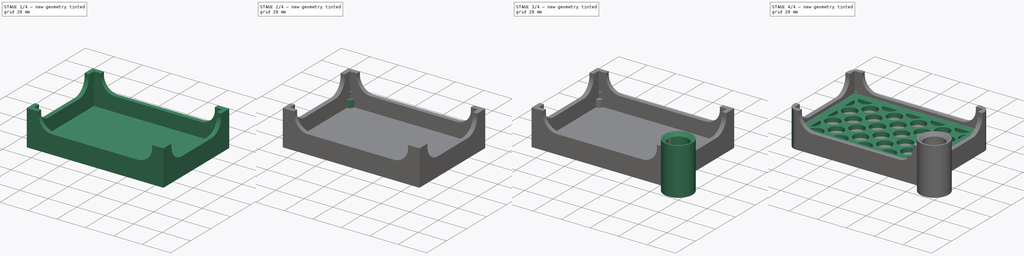
[diagram: build sequence overview — one tinted view per stage of 4, left to right]
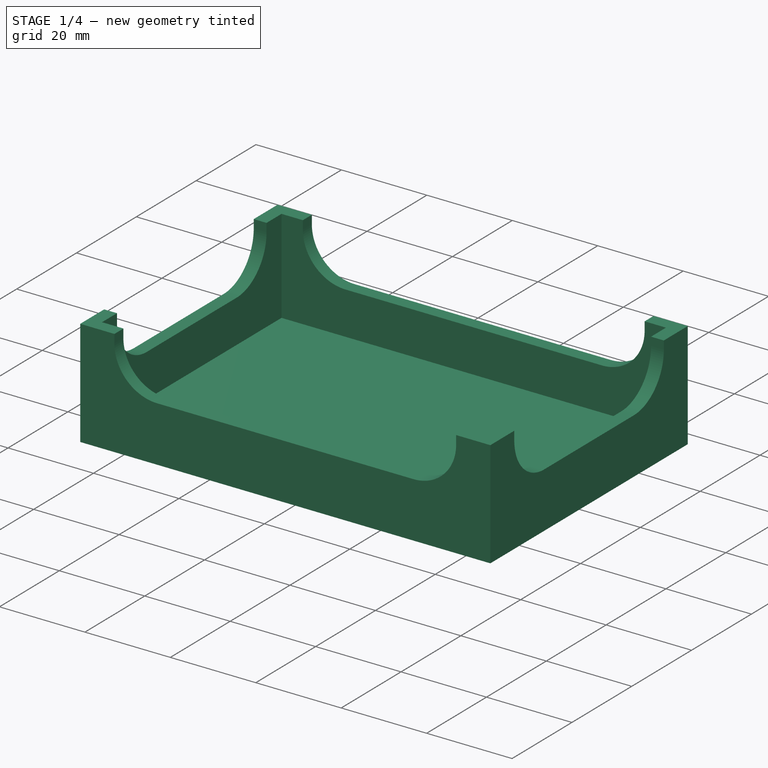
[diagram: stage 1 of 4 — iso view after this stage's code; geometry added in this stage tinted green]
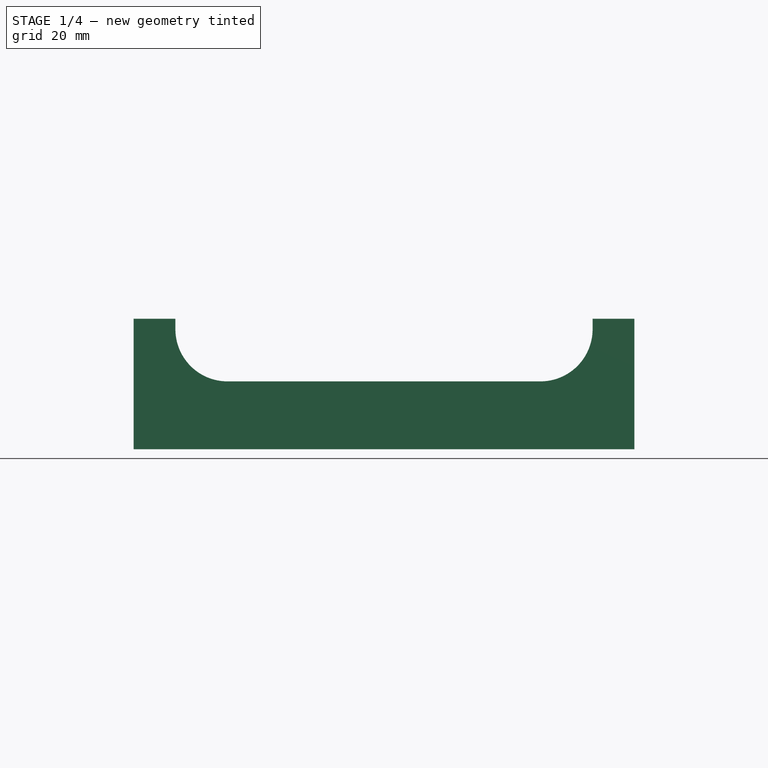
[diagram: stage 1 of 4 — front view after this stage's code; geometry added in this stage tinted green]
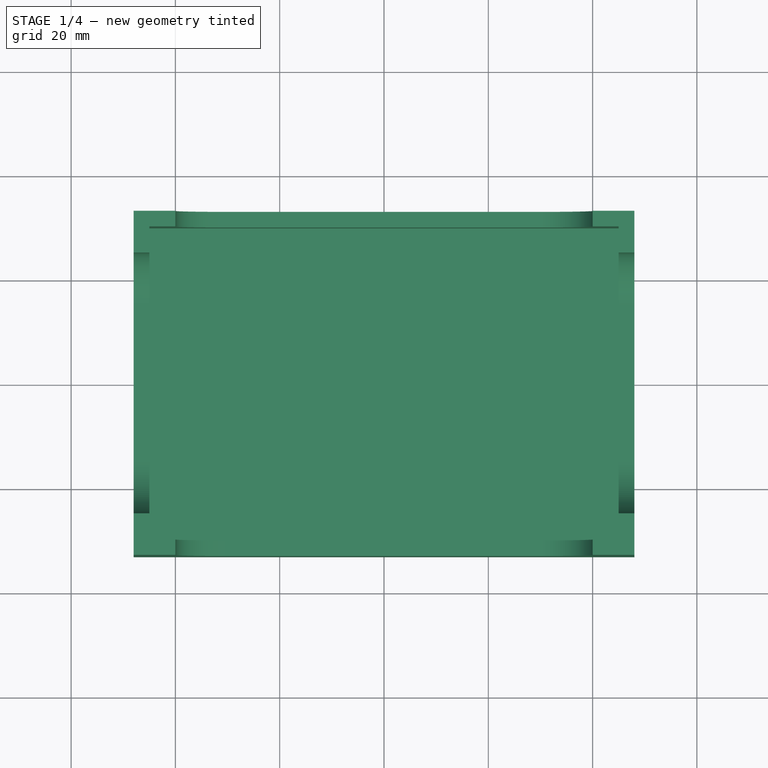
[diagram: stage 1 of 4 — top view after this stage's code; geometry added in this stage tinted green]
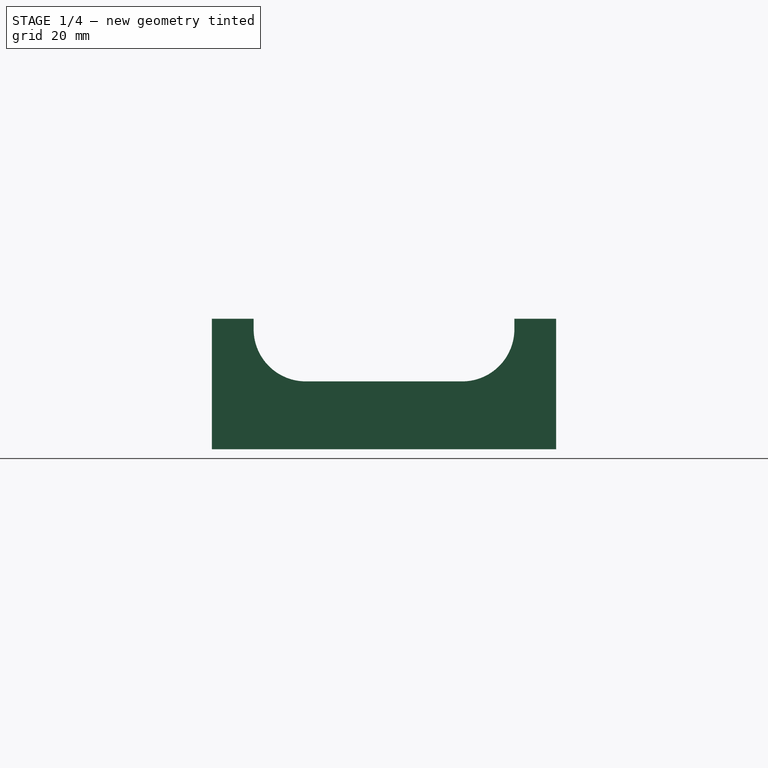
[diagram: stage 1 of 4 — right view after this stage's code; geometry added in this stage tinted green]
FCSTD DOCUMENT  (FreeCAD 0.19R23323 (Git))
Label: soap-holder
License: All rights reserved
LicenseURL: http://en.wikipedia.org/wiki/All_rights_reserved
objects: Sketcher::SketchObject×11, PartDesign::Pad×6, PartDesign::Pocket×5, PartDesign::Chamfer×2, PartDesign::Body×2, PartDesign::Fillet×1
note: 41 computed .brp shape members not serialized (recipe doc carries the construction recipe); baked Part::Feature solids carry a one-line shape summary decoded from their .brp

FEATURE [Sketcher::SketchObject] Sketch
  MapMode = 5
  Support = -> [XY_Plane]
  sketch-geometry (4):
    g0: LineSegment StartX=-48 StartY=33 StartZ=0 EndX=48 EndY=33 EndZ=0
    g1: LineSegment StartX=48 StartY=33 StartZ=0 EndX=48 EndY=-33 EndZ=0
    g2: LineSegment StartX=48 StartY=-33 StartZ=0 EndX=-48 EndY=-33 EndZ=0
    g3: LineSegment StartX=-48 StartY=-33 StartZ=0 EndX=-48 EndY=33 EndZ=0
  constraints (10):
    c: Coincident(g0,g1)
    c: Coincident(g1,g2)
    c: Coincident(g2,g3)
    c: Coincident(g3,g0)
    c: Horizontal(g2)
    c: Vertical(g1)
    c: Distance(g2) = 96
    c: Distance(g1) = 66
    c: Symmetric(g0,g0,g-2)
    c: Symmetric(g0,g2,g-1)
FEATURE [PartDesign::Pad] Pad  label="Case"
  Direction = (1,1,1)
  Length = 25
  Length2 = 100
  Profile = -> Sketch
  Type = 0
FEATURE [Sketcher::SketchObject] Sketch001
  MapMode = 5
  Placement = pos=(0,0,25) rot=(0,0,1;0rad)
  Support = -> [Pad]
  sketch-geometry (4):
    g0: LineSegment StartX=-45 StartY=30 StartZ=0 EndX=45 EndY=30 EndZ=0
    g1: LineSegment StartX=45 StartY=30 StartZ=0 EndX=45 EndY=-30 EndZ=0
    g2: LineSegment StartX=45 StartY=-30 StartZ=0 EndX=-45 EndY=-30 EndZ=0
    g3: LineSegment StartX=-45 StartY=-30 StartZ=0 EndX=-45 EndY=30 EndZ=0
  constraints (10):
    c: Coincident(g0,g1)
    c: Coincident(g1,g2)
    c: Coincident(g2,g3)
    c: Coincident(g3,g0)
    c: Horizontal(g2)
    c: Vertical(g1)
    c: Distance(g3) = 60
    c: Distance(g0) = 90
    c: Symmetric(g0,g0,g-2)
    c: Symmetric(g0,g2,g-1)
FEATURE [PartDesign::Pocket] Pocket  label="Case cutout"
  BaseFeature = -> Pad
  Length = 22
  Length2 = 100
  Profile = -> Sketch001
  Type = 0
  expr: Length = 25 - 3
FEATURE [Sketcher::SketchObject] Sketch002
  MapMode = 5
  Placement = pos=(0,-33,0) rot=(1,0,0;1.5708rad)
  Support = -> [Pocket]
  expr: Constraints[12] = 31 - 18
  sketch-geometry (6):
    g0: LineSegment StartX=-40 StartY=31 StartZ=0 EndX=40 EndY=31 EndZ=0
    g1: LineSegment StartX=40 StartY=31 StartZ=0 EndX=40 EndY=23 EndZ=0
    g2: LineSegment StartX=30 StartY=13 StartZ=0 EndX=-30 EndY=13 EndZ=0
    g3: LineSegment StartX=-40 StartY=23 StartZ=0 EndX=-40 EndY=31 EndZ=0
    g4: ArcOfCircle CenterX=-30 CenterY=23 CenterZ=0 NormalX=0 NormalY=0 NormalZ=1 AngleXU=0 Radius=10 StartAngle=3.14159 EndAngle=4.71239
    g5: ArcOfCircle CenterX=30 CenterY=23 CenterZ=0 NormalX=0 NormalY=0 NormalZ=1 AngleXU=0 Radius=10 StartAngle=4.71239 EndAngle=6.28319
  constraints (15):
    c: Coincident(g0,g1)
    c: Coincident(g3,g0)
    c: Horizontal(g2)
    c: Vertical(g1)
    c: Vertical(g3)
    c: Symmetric(g0,g0,g-2)
    c: DistanceY(g-1,g0) = 31
    c: Tangent(g3,g4) = 1.5708
    c: Tangent(g2,g4) = 1.5708
    c: Tangent(g1,g5) = 1.5708
    c: Tangent(g2,g5) = 1.5708
    c: Equal(g4,g5)
    c: DistanceY(g-1,g2) = 13
    c: Distance(g0) = 80
    c: Distance(g3,g4) = 10
FEATURE [PartDesign::Pocket] Pocket001  label="Case side cutout"
  BaseFeature = -> Pocket
  Length = 66
  Length2 = 100
  Profile = -> Sketch002
  Type = 0
FEATURE [Sketcher::SketchObject] Sketch003
  MapMode = 5
  Placement = pos=(-48,0,0) rot=(0.57735,-0.57735,-0.57735;2.0944rad)
  Support = -> [Pocket001]
  expr: Constraints[13] = 31 - 18
  sketch-geometry (6):
    g0: LineSegment StartX=-25 StartY=31 StartZ=0 EndX=25 EndY=31 EndZ=0
    g1: LineSegment StartX=25 StartY=31 StartZ=0 EndX=25 EndY=23 EndZ=0
    g2: LineSegment StartX=15 StartY=13 StartZ=0 EndX=-15 EndY=13 EndZ=0
    g3: LineSegment StartX=-25 StartY=23 StartZ=0 EndX=-25 EndY=31 EndZ=0
    g4: ArcOfCircle CenterX=-15 CenterY=23 CenterZ=0 NormalX=0 NormalY=0 NormalZ=1 AngleXU=0 Radius=10 StartAngle=3.14159 EndAngle=4.71239
    g5: ArcOfCircle CenterX=15 CenterY=23 CenterZ=0 NormalX=0 NormalY=0 NormalZ=1 AngleXU=0 Radius=10 StartAngle=4.71239 EndAngle=6.28319
  constraints (15):
    c: Coincident(g0,g1)
    c: Coincident(g3,g0)
    c: Horizontal(g2)
    c: Vertical(g1)
    c: Vertical(g3)
    c: Symmetric(g0,g0,g-2)
    c: Tangent(g3,g4) = 1.5708
    c: Tangent(g2,g4) = 1.5708
    c: Tangent(g1,g5) = 1.5708
    c: Tangent(g2,g5) = 1.5708
    c: Equal(g5,g4)
    c: DistanceX(g3,g4) = 10
    c: DistanceY(g-1,g0) = 31
    c: DistanceY(g-1,g2) = 13
    c: Distance(g0) = 50
FEATURE [PartDesign::Pocket] Pocket002  label="Case side cutout 2"
  BaseFeature = -> Pocket001
  Length = 96
  Length2 = 100
  Profile = -> Sketch003
  Type = 0
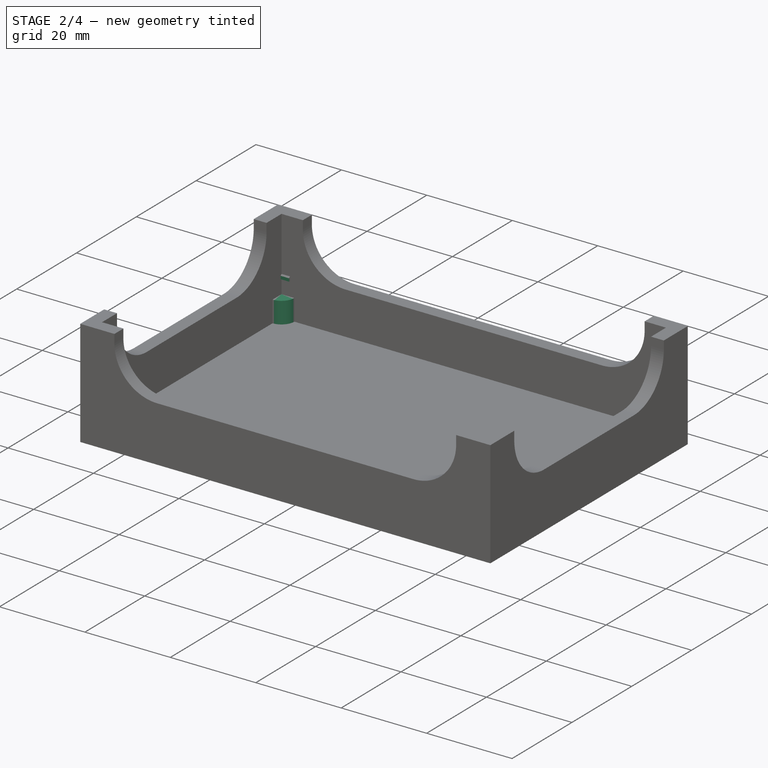
[diagram: stage 2 of 4 — iso view after this stage's code; geometry added in this stage tinted green]
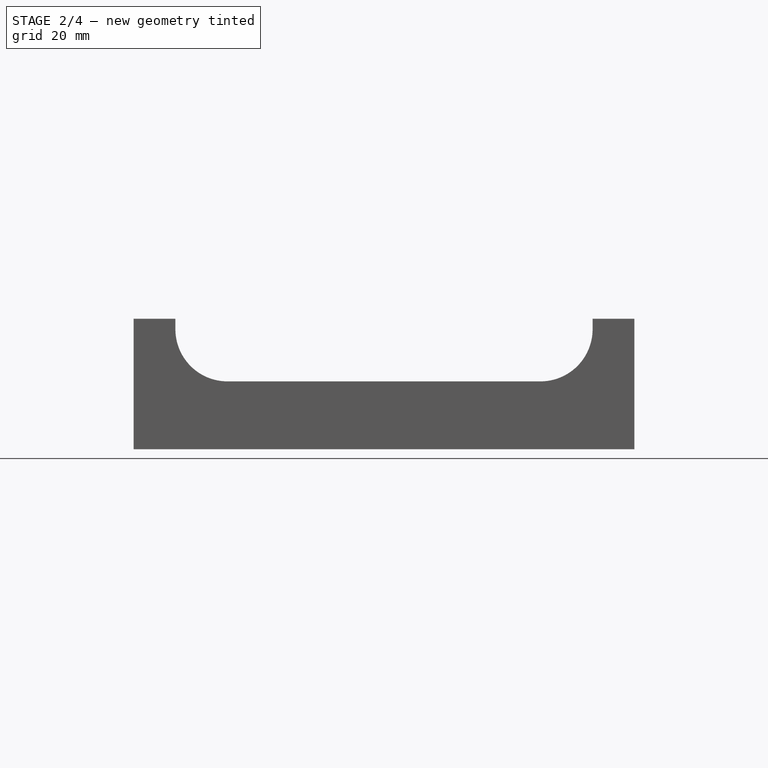
[diagram: stage 2 of 4 — front view after this stage's code; geometry added in this stage tinted green]
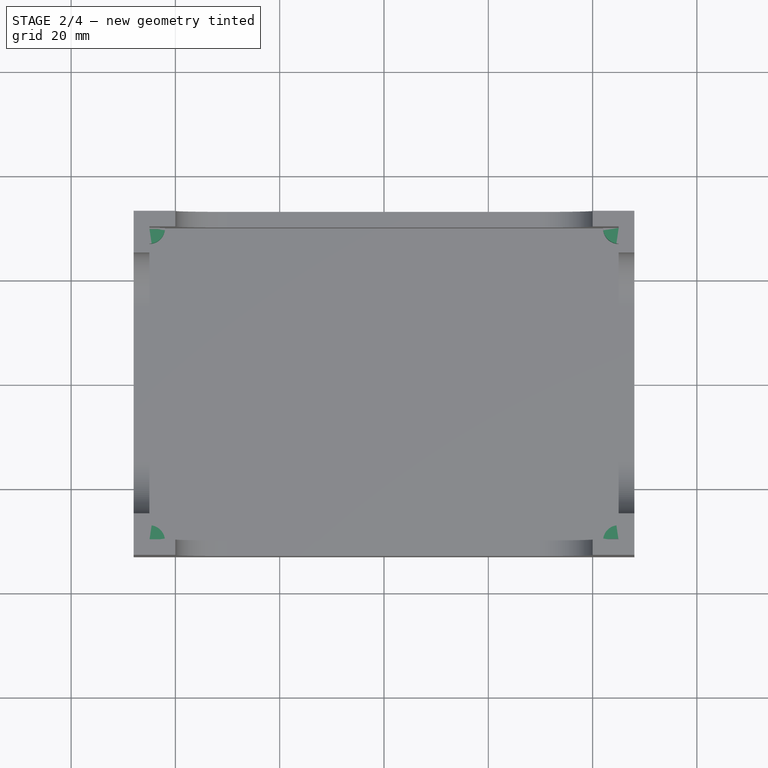
[diagram: stage 2 of 4 — top view after this stage's code; geometry added in this stage tinted green]
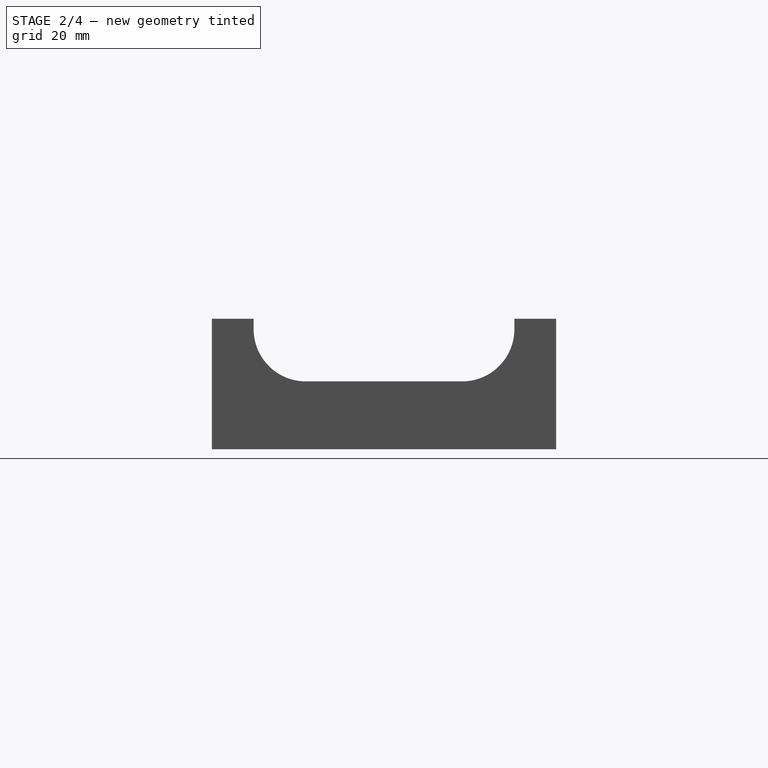
[diagram: stage 2 of 4 — right view after this stage's code; geometry added in this stage tinted green]
FEATURE [Sketcher::SketchObject] Sketch004
  MapMode = 5
  Placement = pos=(0,0,3) rot=(0,0,1;0rad)
  Support = -> [Pocket002]
  sketch-geometry (12):
    g0: ArcOfCircle CenterX=-45 CenterY=30 CenterZ=0 NormalX=0 NormalY=0 NormalZ=1 AngleXU=0 Radius=3 StartAngle=4.71239 EndAngle=6.28319
    g1: ArcOfCircle CenterX=45 CenterY=30 CenterZ=0 NormalX=0 NormalY=0 NormalZ=1 AngleXU=0 Radius=3 StartAngle=3.14159 EndAngle=4.71239
    g2: ArcOfCircle CenterX=45 CenterY=-30 CenterZ=0 NormalX=0 NormalY=0 NormalZ=1 AngleXU=0 Radius=3 StartAngle=1.5708 EndAngle=3.14159
    g3: ArcOfCircle CenterX=-45 CenterY=-30 CenterZ=0 NormalX=0 NormalY=0 NormalZ=1 AngleXU=0 Radius=3 StartAngle=0 EndAngle=1.5708
    g4: LineSegment StartX=-45 StartY=27 StartZ=0 EndX=-45 EndY=30 EndZ=0
    g5: LineSegment StartX=-45 StartY=30 StartZ=0 EndX=-42 EndY=30 EndZ=0
    g6: LineSegment StartX=42 StartY=30 StartZ=0 EndX=45 EndY=30 EndZ=0
    g7: LineSegment StartX=45 StartY=30 StartZ=0 EndX=45 EndY=27 EndZ=0
    g8: LineSegment StartX=42 StartY=-30 StartZ=0 EndX=45 EndY=-30 EndZ=0
    g9: LineSegment StartX=45 StartY=-30 StartZ=0 EndX=45 EndY=-27 EndZ=0
    g10: LineSegment StartX=-45 StartY=-27 StartZ=0 EndX=-45 EndY=-30 EndZ=0
    g11: LineSegment StartX=-45 StartY=-30 StartZ=0 EndX=-42 EndY=-30 EndZ=0
  constraints (33):
    c: Symmetric(g0,g1,g-2)
    c: Symmetric(g3,g2,g-2)
    c: Symmetric(g0,g3,g-1)
    c: Equal(g0,g1)
    c: Equal(g0,g2)
    c: Equal(g0,g3)
    c: DistanceY(g-1,g0) = 30
    c: DistanceX(g0,g-1) = 45
    c: Radius(g0) = 3
    c: DistanceX(g0,g-1) = 45
    c: DistanceX(g-1,g1) = 45
    c: DistanceX(g-1,g2) = 45
    c: DistanceX(g3,g-1) = 45
    c: DistanceY(g-1,g0) = 30
    c: DistanceY(g-1,g1) = 30
    c: DistanceY(g2,g-1) = 30
    c: DistanceY(g3,g-1) = 30
    c: Coincident(g4,g0)
    c: Coincident(g4,g0)
    c: Coincident(g5,g0)
    c: Coincident(g5,g0)
    c: Coincident(g6,g1)
    c: Coincident(g6,g1)
    c: Coincident(g7,g1)
    c: Coincident(g7,g1)
    c: Coincident(g8,g2)
    c: Coincident(g8,g2)
    c: Coincident(g9,g2)
    c: Coincident(g9,g2)
    c: Coincident(g10,g3)
    c: Coincident(g10,g3)
    c: Coincident(g11,g3)
    c: Coincident(g11,g3)
FEATURE [PartDesign::Pad] Pad001  label="Grate standoff"
  BaseFeature = -> Pocket002
  Direction = (1,1,1)
  Length = 5
  Length2 = 100
  Profile = -> Sketch004
  Type = 0
FEATURE [Sketcher::SketchObject] Sketch005
  AttachmentOffset = pos=(0,0,3.3) rot=(0,0,1;0rad)
  MapMode = 5
  Placement = pos=(0,0,11.3) rot=(0,0,1;0rad)
  Support = -> [Pad001]
  sketch-geometry (8):
    g0: LineSegment StartX=-45 StartY=30 StartZ=0 EndX=-43 EndY=30 EndZ=0
    g1: LineSegment StartX=-43 StartY=30 StartZ=0 EndX=-43 EndY=29.7 EndZ=0
    g2: LineSegment StartX=-43 StartY=29.7 StartZ=0 EndX=-45 EndY=29.7 EndZ=0
    g3: LineSegment StartX=-45 StartY=29.7 StartZ=0 EndX=-45 EndY=30 EndZ=0
    g4: LineSegment StartX=43 StartY=-30 StartZ=0 EndX=45 EndY=-30 EndZ=0
    g5: LineSegment StartX=45 StartY=-30 StartZ=0 EndX=45 EndY=-29.7 EndZ=0
    g6: LineSegment StartX=45 StartY=-29.7 StartZ=0 EndX=43 EndY=-29.7 EndZ=0
    g7: LineSegment StartX=43 StartY=-29.7 StartZ=0 EndX=43 EndY=-30 EndZ=0
  constraints (24):
    c: Coincident(g0,g1)
    c: Coincident(g1,g2)
    c: Coincident(g2,g3)
    c: Coincident(g3,g0)
    c: Horizontal(g0)
    c: Horizontal(g2)
    c: Vertical(g1)
    c: Vertical(g3)
    c: Coincident(g4,g5)
    c: Coincident(g5,g6)
    c: Coincident(g6,g7)
    c: Coincident(g7,g4)
    c: Horizontal(g4)
    c: Horizontal(g6)
    c: Vertical(g5)
    c: Vertical(g7)
    c: Distance(g2) = 2
    c: Distance(g1) = 0.3
    c: Equal(g1,g7)
    c: Equal(g2,g6)
    c: DistanceX(g-1,g4) = 45
    c: DistanceY(g4,g-1) = 30
    c: DistanceX(g0,g-1) = 45
    c: DistanceY(g-1,g0) = 30
FEATURE [PartDesign::Pad] Pad002  label="Grate snap"
  BaseFeature = -> Pad001
  Direction = (1,1,1)
  Length = 1
  Length2 = 100
  Profile = -> Sketch005
  Type = 0
FEATURE [PartDesign::Chamfer] Chamfer  label="Gtate snap chamfer"
  Angle = 45
  Base = -> Pad002 [Edge138,Edge137]
  BaseFeature = -> Pad002
  ChamferType = 0
  FlipDirection = false
  Size = 0.29
  Size2 = 1
  SupportTransform = false
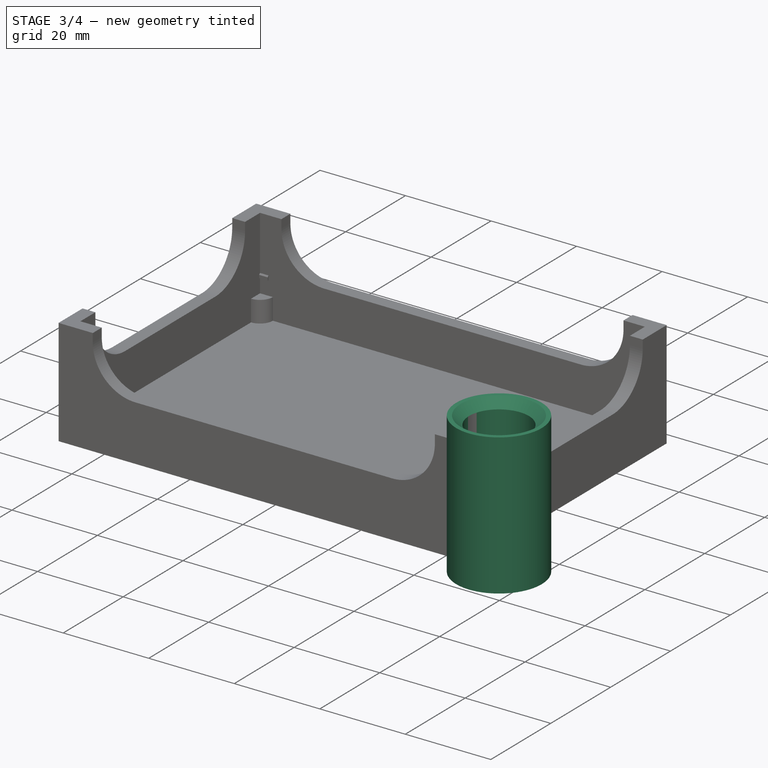
[diagram: stage 3 of 4 — iso view after this stage's code; geometry added in this stage tinted green]
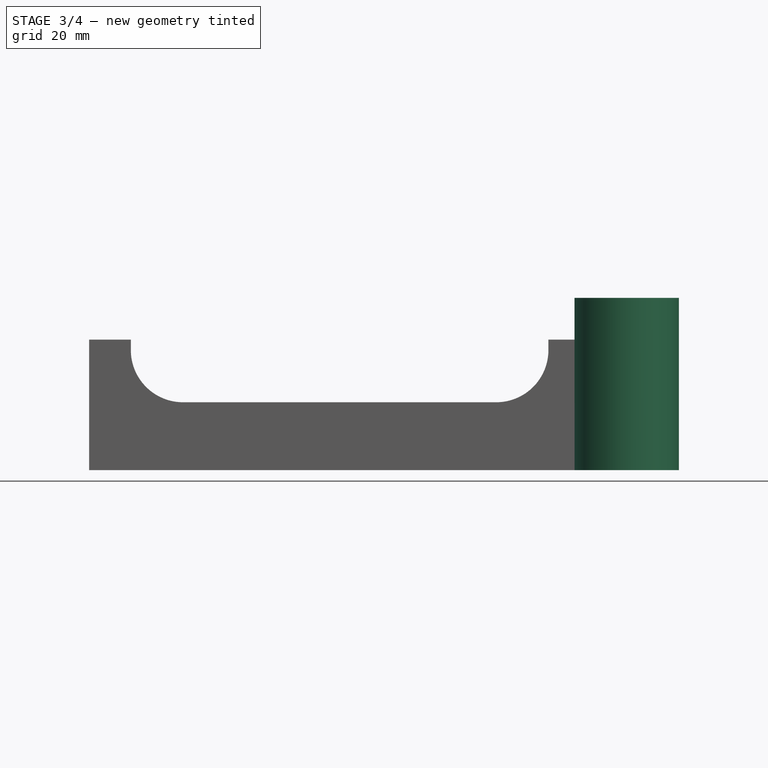
[diagram: stage 3 of 4 — front view after this stage's code; geometry added in this stage tinted green]
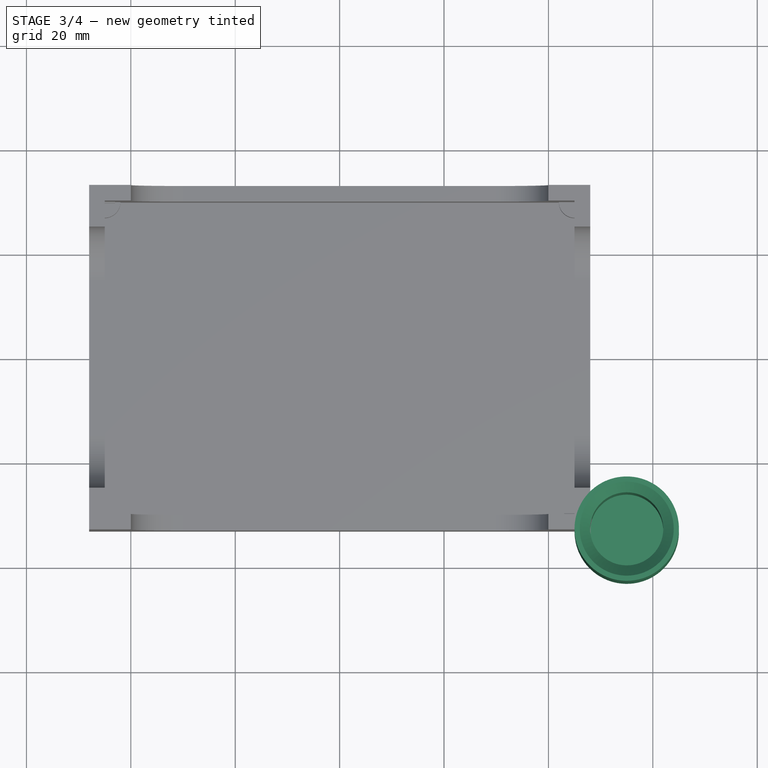
[diagram: stage 3 of 4 — top view after this stage's code; geometry added in this stage tinted green]
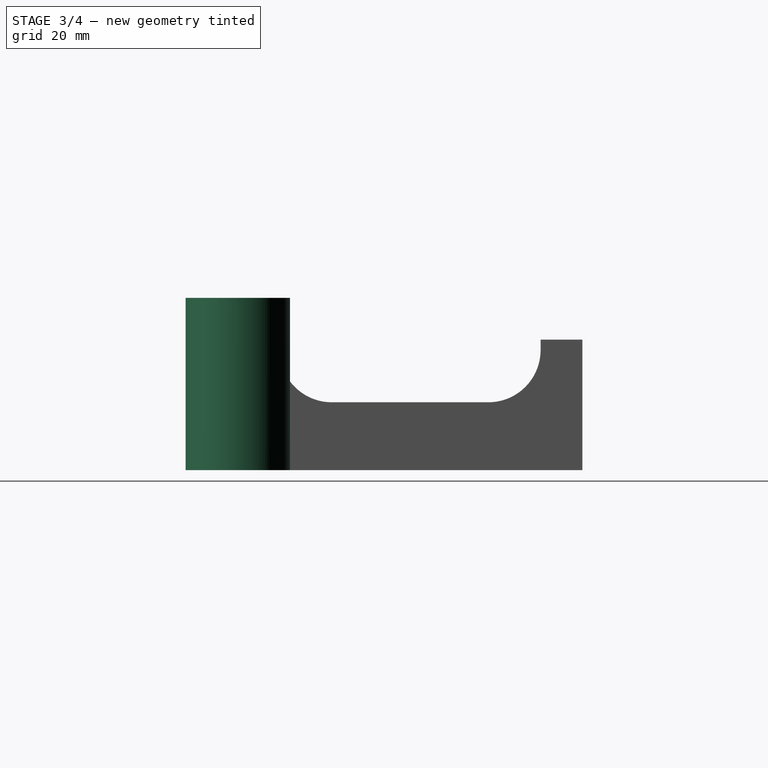
[diagram: stage 3 of 4 — right view after this stage's code; geometry added in this stage tinted green]
FEATURE [PartDesign::Body] Body001  label="Grate"
  Group = -> [Sketch006,Pad003,Sketch007,Pocket003,Sketch008,Pad004]
  Origin = -> Origin001
  Tip = -> Pad004
FEATURE [Sketcher::SketchObject] Sketch009
  MapMode = 5
  Placement = pos=(0,0,0) rot=(1,0,0;3.14159rad)
  Support = -> [Chamfer]
  expr: Constraints[2] = 66 / 2
  expr: Constraints[1] = 96 / 2 + 7
  sketch-geometry (1):
    g0: Circle CenterX=55 CenterY=33 CenterZ=0 NormalX=0 NormalY=0 NormalZ=1 AngleXU=0 Radius=10
  constraints (3):
    c: Radius(g0) = 10
    c: DistanceX(g-1,g0) = 55
    c: DistanceY(g-1,g0) = 33
FEATURE [PartDesign::Pad] Pad005  label="Bobby pin holder"
  BaseFeature = -> Chamfer
  Direction = (1,1,1)
  Length = 33
  Length2 = 100
  Profile = -> Sketch009
  Reversed = true
  Type = 0
FEATURE [Sketcher::SketchObject] Sketch010
  MapMode = 5
  Placement = pos=(0,0,33) rot=(0,0,1;0rad)
  Support = -> [Pad005]
  sketch-geometry (1):
    g0: Circle CenterX=55 CenterY=-33 CenterZ=0 NormalX=0 NormalY=0 NormalZ=1 AngleXU=0 Radius=7
  constraints (3):
    c: Radius(g0) = 7
    c: DistanceX(g-1,g0) = 55
    c: DistanceY(g0,g-1) = 33
FEATURE [PartDesign::Pocket] Pocket004  label="Bobby pin holder cutout"
  BaseFeature = -> Pad005
  Length = 28
  Length2 = 100
  Profile = -> Sketch010
  Type = 0
  expr: Length = 31 - 3
FEATURE [PartDesign::Chamfer] Chamfer001  label="Bobby pin holder Chamfer"
  Angle = 45
  Base = -> Pocket004 [Edge160]
  BaseFeature = -> Pocket004
  ChamferType = 0
  FlipDirection = false
  Size = 2
  Size2 = 1
  SupportTransform = false
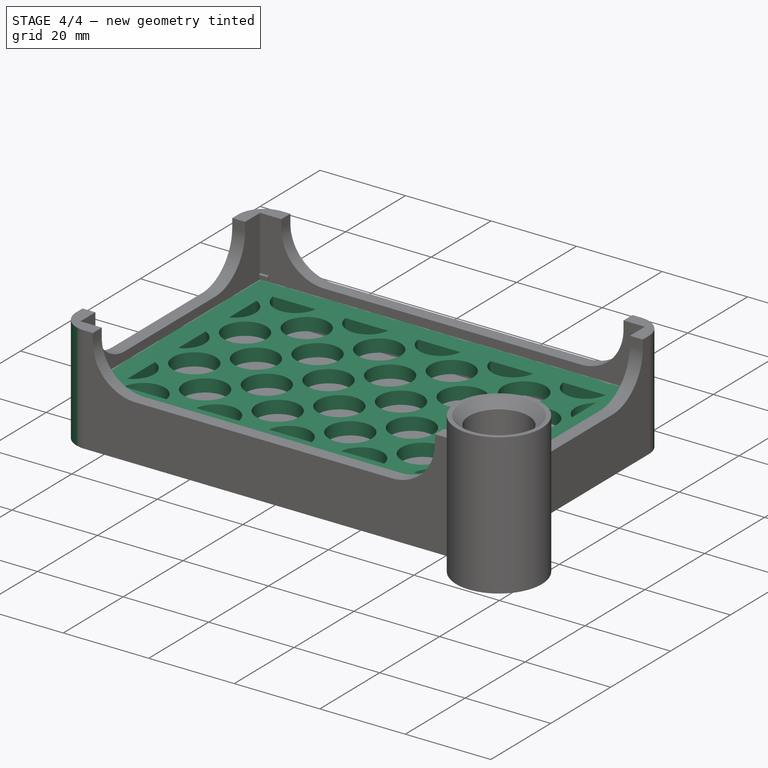
[diagram: stage 4 of 4 — iso view after this stage's code; geometry added in this stage tinted green]
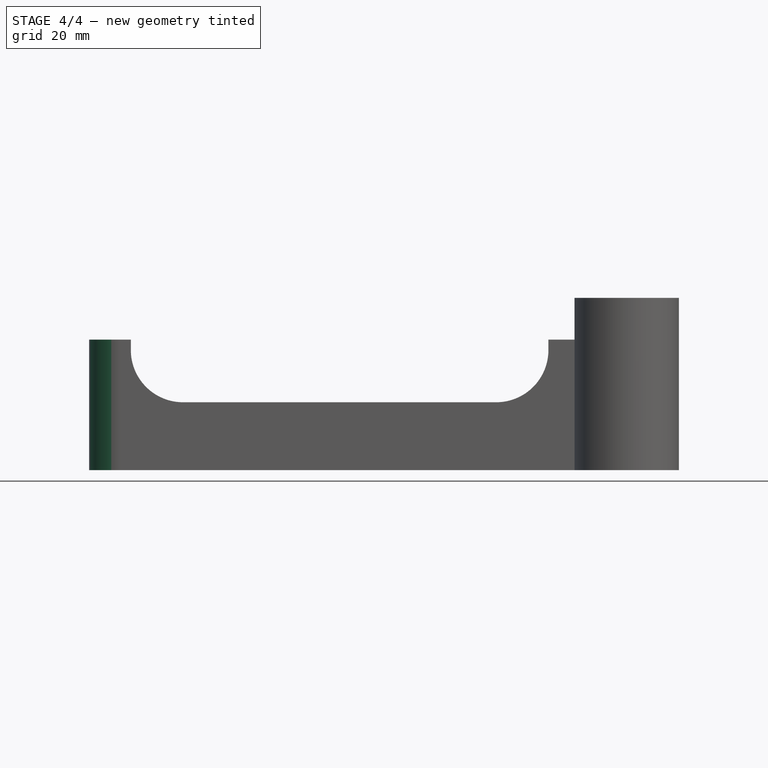
[diagram: stage 4 of 4 — front view after this stage's code; geometry added in this stage tinted green]
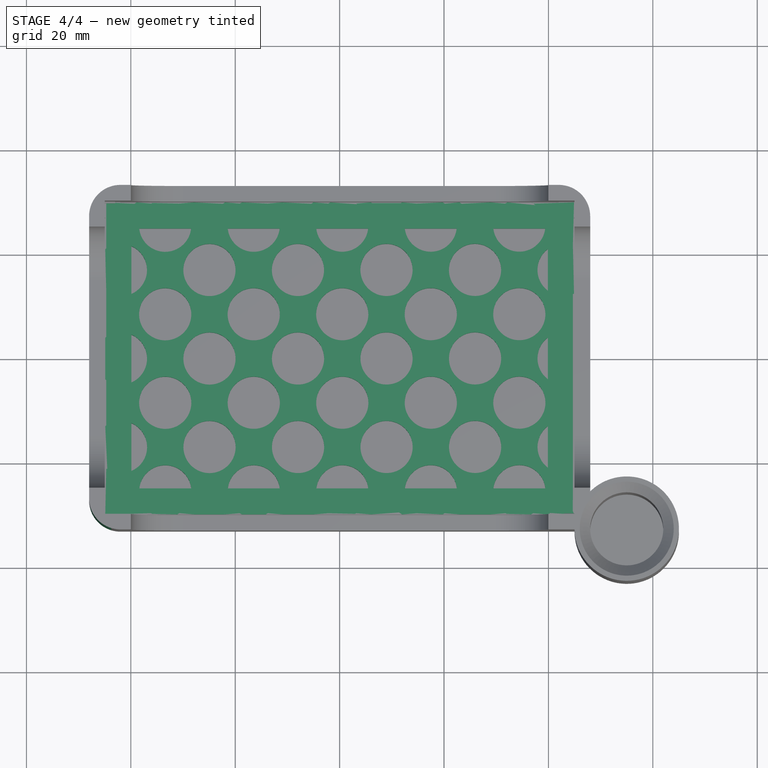
[diagram: stage 4 of 4 — top view after this stage's code; geometry added in this stage tinted green]
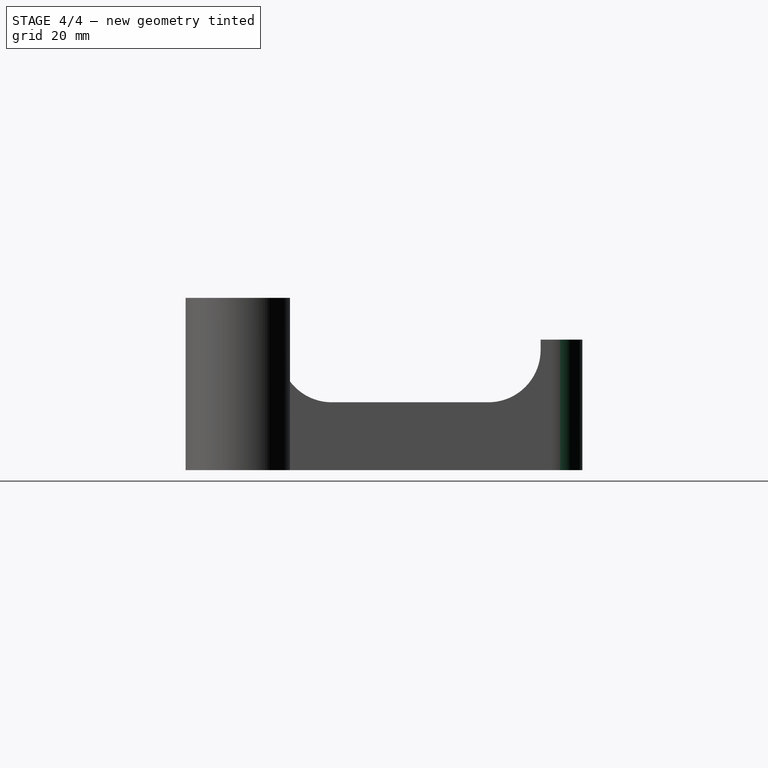
[diagram: stage 4 of 4 — right view after this stage's code; geometry added in this stage tinted green]
FEATURE [Sketcher::SketchObject] Sketch006
  AttachmentOffset = pos=(0,0,8) rot=(0,0,1;0rad)
  MapMode = 5
  Placement = pos=(0,0,8) rot=(0,0,1;0rad)
  Support = -> [XY_Plane001]
  sketch-geometry (4):
    g0: LineSegment StartX=-44.9 StartY=29.9 StartZ=0 EndX=44.9 EndY=29.9 EndZ=0
    g1: LineSegment StartX=44.9 StartY=29.9 StartZ=0 EndX=44.9 EndY=-29.9 EndZ=0
    g2: LineSegment StartX=44.9 StartY=-29.9 StartZ=0 EndX=-44.9 EndY=-29.9 EndZ=0
    g3: LineSegment StartX=-44.9 StartY=-29.9 StartZ=0 EndX=-44.9 EndY=29.9 EndZ=0
  constraints (10):
    c: Coincident(g0,g1)
    c: Coincident(g1,g2)
    c: Coincident(g2,g3)
    c: Coincident(g3,g0)
    c: Horizontal(g2)
    c: Vertical(g1)
    c: Symmetric(g0,g0,g-2)
    c: Symmetric(g0,g2,g-1)
    c: DistanceX(g0,g-1) = 44.9
    c: DistanceY(g-1,g0) = 29.9
FEATURE [PartDesign::Pad] Pad003  label="Grate001"
  Direction = (1,1,1)
  Length = 3
  Length2 = 100
  Profile = -> Sketch006
  Type = 0
FEATURE [Sketcher::SketchObject] Sketch007
  MapMode = 5
  Placement = pos=(0,0,11) rot=(0,0,1;0rad)
  Support = -> [Pad003]
  sketch-geometry (159):
    g0: Circle CenterX=-8.00419 CenterY=67.8318 CenterZ=0 NormalX=0 NormalY=0 NormalZ=1 AngleXU=0 Radius=5
    g1: Circle CenterX=0.479301 CenterY=59.3558 CenterZ=0 NormalX=0 NormalY=0 NormalZ=1 AngleXU=0 Radius=5
    g2: LineSegment StartX=-8.00419 StartY=67.8318 StartZ=0 EndX=0.479301 EndY=59.3558 EndZ=0
    g3: Circle CenterX=8.96279 CenterY=50.8798 CenterZ=0 NormalX=0 NormalY=0 NormalZ=1 AngleXU=0 Radius=5
    g4: LineSegment StartX=0.479301 StartY=59.3558 StartZ=0 EndX=8.96279 EndY=50.8798 EndZ=0
    g5: Circle CenterX=17.4463 CenterY=42.4038 CenterZ=0 NormalX=0 NormalY=0 NormalZ=1 AngleXU=0 Radius=5
    g6: LineSegment StartX=8.96279 StartY=50.8798 StartZ=0 EndX=17.4463 EndY=42.4038 EndZ=0
    g7: Circle CenterX=25.9298 CenterY=33.9279 CenterZ=0 NormalX=0 NormalY=0 NormalZ=1 AngleXU=0 Radius=5
    g8: LineSegment StartX=17.4463 StartY=42.4038 StartZ=0 EndX=25.9298 EndY=33.9279 EndZ=0
    g9: Circle CenterX=34.4133 CenterY=25.4519 CenterZ=0 NormalX=0 NormalY=0 NormalZ=1 AngleXU=0 Radius=5
    g10: LineSegment StartX=25.9298 StartY=33.9279 StartZ=0 EndX=34.4133 EndY=25.4519 EndZ=0
    g11: Circle CenterX=42.8968 CenterY=16.9759 CenterZ=0 NormalX=0 NormalY=0 NormalZ=1 AngleXU=0 Radius=5
    g12: LineSegment StartX=34.4133 StartY=25.4519 StartZ=0 EndX=42.8968 EndY=16.9759 EndZ=0
    g13: Circle CenterX=51.3802 CenterY=8.49988 CenterZ=0 NormalX=0 NormalY=0 NormalZ=1 AngleXU=0 Radius=5
    g14: LineSegment StartX=42.8968 StartY=16.9759 StartZ=0 EndX=51.3802 EndY=8.49988 EndZ=0
    g15: Circle CenterX=59.8637 CenterY=0.023883 CenterZ=0 NormalX=0 NormalY=0 NormalZ=1 AngleXU=0 Radius=5
    g16: LineSegment StartX=51.3802 StartY=8.49988 StartZ=0 EndX=59.8637 EndY=0.023883 EndZ=0
    g17: Circle CenterX=68.3472 CenterY=-8.45211 CenterZ=0 NormalX=0 NormalY=0 NormalZ=1 AngleXU=0 Radius=5
    g18: LineSegment StartX=59.8637 StartY=0.023883 StartZ=0 EndX=68.3472 EndY=-8.45211 EndZ=0
    g19: Circle CenterX=-16.4802 CenterY=59.3483 CenterZ=0 NormalX=0 NormalY=0 NormalZ=1 AngleXU=0 Radius=5
    g20: LineSegment StartX=-8.00419 StartY=67.8318 StartZ=0 EndX=-16.4802 EndY=59.3483 EndZ=0
    g21: Circle CenterX=-7.99669 CenterY=50.8723 CenterZ=0 NormalX=0 NormalY=0 NormalZ=1 AngleXU=0 Radius=5
    g22: LineSegment StartX=-16.4802 StartY=59.3483 StartZ=0 EndX=-7.99669 EndY=50.8723 EndZ=0
    g23: Circle CenterX=0.486798 CenterY=42.3964 CenterZ=0 NormalX=0 NormalY=0 NormalZ=1 AngleXU=0 Radius=5
    g24: LineSegment StartX=-7.99669 StartY=50.8723 StartZ=0 EndX=0.486798 EndY=42.3964 EndZ=0
    g25: Circle CenterX=8.97029 CenterY=33.9204 CenterZ=0 NormalX=0 NormalY=0 NormalZ=1 AngleXU=0 Radius=5
    g26: LineSegment StartX=0.486798 StartY=42.3964 StartZ=0 EndX=8.97029 EndY=33.9204 EndZ=0
    g27: Circle CenterX=17.4538 CenterY=25.4444 CenterZ=0 NormalX=0 NormalY=0 NormalZ=1 AngleXU=0 Radius=5
    g28: LineSegment StartX=8.97029 StartY=33.9204 StartZ=0 EndX=17.4538 EndY=25.4444 EndZ=0
    g29: Circle CenterX=25.9373 CenterY=16.9684 CenterZ=0 NormalX=0 NormalY=0 NormalZ=1 AngleXU=0 Radius=5
    g30: LineSegment StartX=17.4538 StartY=25.4444 StartZ=0 EndX=25.9373 EndY=16.9684 EndZ=0
    g31: Circle CenterX=34.4208 CenterY=8.49238 CenterZ=0 NormalX=0 NormalY=0 NormalZ=1 AngleXU=0 Radius=5
    g32: LineSegment StartX=25.9373 StartY=16.9684 StartZ=0 EndX=34.4208 EndY=8.49238 EndZ=0
    g33: Circle CenterX=42.9042 CenterY=0.016386 CenterZ=0 NormalX=0 NormalY=0 NormalZ=1 AngleXU=0 Radius=5
    g34: LineSegment StartX=34.4208 StartY=8.49238 StartZ=0 EndX=42.9042 EndY=0.016386 EndZ=0
    g35: Circle CenterX=51.3877 CenterY=-8.45961 CenterZ=0 NormalX=0 NormalY=0 NormalZ=1 AngleXU=0 Radius=5
    g36: LineSegment StartX=42.9042 StartY=0.016386 StartZ=0 EndX=51.3877 EndY=-8.45961 EndZ=0
    g37: Circle CenterX=59.8712 CenterY=-16.9356 CenterZ=0 NormalX=0 NormalY=0 NormalZ=1 AngleXU=0 Radius=5
    g38: LineSegment StartX=51.3877 StartY=-8.45961 StartZ=0 EndX=59.8712 EndY=-16.9356 EndZ=0
    g39: Circle CenterX=-24.9562 CenterY=50.8648 CenterZ=0 NormalX=0 NormalY=0 NormalZ=1 AngleXU=0 Radius=5
    g40: LineSegment StartX=-16.4802 StartY=59.3483 StartZ=0 EndX=-24.9562 EndY=50.8648 EndZ=0
    g41: Circle CenterX=-16.4727 CenterY=42.3889 CenterZ=0 NormalX=0 NormalY=0 NormalZ=1 AngleXU=0 Radius=5
    g42: LineSegment StartX=-24.9562 StartY=50.8648 StartZ=0 EndX=-16.4727 EndY=42.3889 EndZ=0
    g43: Circle CenterX=-7.9892 CenterY=33.9129 CenterZ=0 NormalX=0 NormalY=0 NormalZ=1 AngleXU=0 Radius=5
    g44: LineSegment StartX=-16.4727 StartY=42.3889 StartZ=0 EndX=-7.9892 EndY=33.9129 EndZ=0
    g45: Circle CenterX=0.494295 CenterY=25.4369 CenterZ=0 NormalX=0 NormalY=0 NormalZ=1 AngleXU=0 Radius=5
    g46: LineSegment StartX=-7.9892 StartY=33.9129 StartZ=0 EndX=0.494295 EndY=25.4369 EndZ=0
    g47: Circle CenterX=8.97778 CenterY=16.9609 CenterZ=0 NormalX=0 NormalY=0 NormalZ=1 AngleXU=0 Radius=5
    g48: LineSegment StartX=0.494295 StartY=25.4369 StartZ=0 EndX=8.97778 EndY=16.9609 EndZ=0
    g49: Circle CenterX=17.4613 CenterY=8.48488 CenterZ=0 NormalX=0 NormalY=0 NormalZ=1 AngleXU=0 Radius=5
    g50: LineSegment StartX=8.97778 StartY=16.9609 StartZ=0 EndX=17.4613 EndY=8.48488 EndZ=0
    g51: Circle CenterX=25.9448 CenterY=0.008889 CenterZ=0 NormalX=0 NormalY=0 NormalZ=1 AngleXU=0 Radius=5
    g52: LineSegment StartX=17.4613 StartY=8.48488 StartZ=0 EndX=25.9448 EndY=0.008889 EndZ=0
    g53: Circle CenterX=34.4283 CenterY=-8.4671 CenterZ=0 NormalX=0 NormalY=0 NormalZ=1 AngleXU=0 Radius=5
    g54: LineSegment StartX=25.9448 StartY=0.008889 StartZ=0 EndX=34.4283 EndY=-8.4671 EndZ=0
    g55: Circle CenterX=42.9117 CenterY=-16.9431 CenterZ=0 NormalX=0 NormalY=0 NormalZ=1 AngleXU=0 Radius=5
    g56: LineSegment StartX=34.4283 StartY=-8.4671 StartZ=0 EndX=42.9117 EndY=-16.9431 EndZ=0
    g57: Circle CenterX=51.3952 CenterY=-25.4191 CenterZ=0 NormalX=0 NormalY=0 NormalZ=1 AngleXU=0 Radius=5
    g58: LineSegment StartX=42.9117 StartY=-16.9431 StartZ=0 EndX=51.3952 EndY=-25.4191 EndZ=0
    g59: Circle CenterX=-33.4322 CenterY=42.3814 CenterZ=0 NormalX=0 NormalY=0 NormalZ=1 AngleXU=0 Radius=5
    g60: LineSegment StartX=-24.9562 StartY=50.8648 StartZ=0 EndX=-33.4322 EndY=42.3814 EndZ=0
    g61: Circle CenterX=-24.9487 CenterY=33.9054 CenterZ=0 NormalX=0 NormalY=0 NormalZ=1 AngleXU=0 Radius=5
    g62: LineSegment StartX=-33.4322 StartY=42.3814 StartZ=0 EndX=-24.9487 EndY=33.9054 EndZ=0
    g63: Circle CenterX=-16.4652 CenterY=25.4294 CenterZ=0 NormalX=0 NormalY=0 NormalZ=1 AngleXU=0 Radius=5
    g64: LineSegment StartX=-24.9487 StartY=33.9054 StartZ=0 EndX=-16.4652 EndY=25.4294 EndZ=0
    g65: Circle CenterX=-7.9817 CenterY=16.9534 CenterZ=0 NormalX=0 NormalY=0 NormalZ=1 AngleXU=0 Radius=5
    g66: LineSegment StartX=-16.4652 StartY=25.4294 StartZ=0 EndX=-7.9817 EndY=16.9534 EndZ=0
    g67: Circle CenterX=0.501792 CenterY=8.47739 CenterZ=0 NormalX=0 NormalY=0 NormalZ=1 AngleXU=0 Radius=5
    g68: LineSegment StartX=-7.9817 StartY=16.9534 StartZ=0 EndX=0.501792 EndY=8.47739 EndZ=0
    g69: Circle CenterX=8.98528 CenterY=0.001392 CenterZ=0 NormalX=0 NormalY=0 NormalZ=1 AngleXU=0 Radius=5
    g70: LineSegment StartX=0.501792 StartY=8.47739 StartZ=0 EndX=8.98528 EndY=0.001392 EndZ=0
    g71: Circle CenterX=17.4688 CenterY=-8.4746 CenterZ=0 NormalX=0 NormalY=0 NormalZ=1 AngleXU=0 Radius=5
    g72: LineSegment StartX=8.98528 StartY=0.001392 StartZ=0 EndX=17.4688 EndY=-8.4746 EndZ=0
    g73: Circle CenterX=25.9523 CenterY=-16.9506 CenterZ=0 NormalX=0 NormalY=0 NormalZ=1 AngleXU=0 Radius=5
    g74: LineSegment StartX=17.4688 StartY=-8.4746 StartZ=0 EndX=25.9523 EndY=-16.9506 EndZ=0
    g75: Circle CenterX=34.4358 CenterY=-25.4266 CenterZ=0 NormalX=0 NormalY=0 NormalZ=1 AngleXU=0 Radius=5
    g76: LineSegment StartX=25.9523 StartY=-16.9506 StartZ=0 EndX=34.4358 EndY=-25.4266 EndZ=0
    g77: Circle CenterX=42.9192 CenterY=-33.9026 CenterZ=0 NormalX=0 NormalY=0 NormalZ=1 AngleXU=0 Radius=5
    g78: LineSegment StartX=34.4358 StartY=-25.4266 StartZ=0 EndX=42.9192 EndY=-33.9026 EndZ=0
    g79: Circle CenterX=-41.9082 CenterY=33.8979 CenterZ=0 NormalX=0 NormalY=0 NormalZ=1 AngleXU=0 Radius=5
    g80: LineSegment StartX=-33.4322 StartY=42.3814 StartZ=0 EndX=-41.9082 EndY=33.8979 EndZ=0
    g81: Circle CenterX=-33.4247 CenterY=25.4219 CenterZ=0 NormalX=0 NormalY=0 NormalZ=1 AngleXU=0 Radius=5
    g82: LineSegment StartX=-41.9082 StartY=33.8979 StartZ=0 EndX=-33.4247 EndY=25.4219 EndZ=0
    g83: Circle CenterX=-24.9412 CenterY=16.9459 CenterZ=0 NormalX=0 NormalY=0 NormalZ=1 AngleXU=0 Radius=5
    g84: LineSegment StartX=-33.4247 StartY=25.4219 StartZ=0 EndX=-24.9412 EndY=16.9459 EndZ=0
    g85: Circle CenterX=-16.4577 CenterY=8.46989 CenterZ=0 NormalX=0 NormalY=0 NormalZ=1 AngleXU=0 Radius=5
    g86: LineSegment StartX=-24.9412 StartY=16.9459 StartZ=0 EndX=-16.4577 EndY=8.46989 EndZ=0
    g87: Circle CenterX=-7.9742 CenterY=-0.006105 CenterZ=0 NormalX=0 NormalY=0 NormalZ=1 AngleXU=0 Radius=5
    g88: LineSegment StartX=-16.4577 StartY=8.46989 StartZ=0 EndX=-7.9742 EndY=-0.006105 EndZ=0
    g89: Circle CenterX=0.509289 CenterY=-8.4821 CenterZ=0 NormalX=0 NormalY=0 NormalZ=1 AngleXU=0 Radius=5
    g90: LineSegment StartX=-7.9742 StartY=-0.006105 StartZ=0 EndX=0.509289 EndY=-8.4821 EndZ=0
    g91: Circle CenterX=8.99278 CenterY=-16.9581 CenterZ=0 NormalX=0 NormalY=0 NormalZ=1 AngleXU=0 Radius=5
    g92: LineSegment StartX=0.509289 StartY=-8.4821 StartZ=0 EndX=8.99278 EndY=-16.9581 EndZ=0
    g93: Circle CenterX=17.4763 CenterY=-25.4341 CenterZ=0 NormalX=0 NormalY=0 NormalZ=1 AngleXU=0 Radius=5
    g94: LineSegment StartX=8.99278 StartY=-16.9581 StartZ=0 EndX=17.4763 EndY=-25.4341 EndZ=0
    g95: Circle CenterX=25.9598 CenterY=-33.9101 CenterZ=0 NormalX=0 NormalY=0 NormalZ=1 AngleXU=0 Radius=5
    g96: LineSegment StartX=17.4763 StartY=-25.4341 StartZ=0 EndX=25.9598 EndY=-33.9101 EndZ=0
    g97: Circle CenterX=34.4432 CenterY=-42.3861 CenterZ=0 NormalX=0 NormalY=0 NormalZ=1 AngleXU=0 Radius=5
    g98: LineSegment StartX=25.9598 StartY=-33.9101 StartZ=0 EndX=34.4432 EndY=-42.3861 EndZ=0
    g99: Circle CenterX=-50.3842 CenterY=25.4144 CenterZ=0 NormalX=0 NormalY=0 NormalZ=1 AngleXU=0 Radius=5
    g100: LineSegment StartX=-41.9082 StartY=33.8979 StartZ=0 EndX=-50.3842 EndY=25.4144 EndZ=0
    g101: Circle CenterX=-41.9007 CenterY=16.9384 CenterZ=0 NormalX=0 NormalY=0 NormalZ=1 AngleXU=0 Radius=5
    g102: LineSegment StartX=-50.3842 StartY=25.4144 StartZ=0 EndX=-41.9007 EndY=16.9384 EndZ=0
    g103: Circle CenterX=-33.4172 CenterY=8.46239 CenterZ=0 NormalX=0 NormalY=0 NormalZ=1 AngleXU=0 Radius=5
    g104: LineSegment StartX=-41.9007 StartY=16.9384 StartZ=0 EndX=-33.4172 EndY=8.46239 EndZ=0
    g105: Circle CenterX=-24.9337 CenterY=-0.013602 CenterZ=0 NormalX=0 NormalY=0 NormalZ=1 AngleXU=0 Radius=5
    g106: LineSegment StartX=-33.4172 StartY=8.46239 StartZ=0 EndX=-24.9337 EndY=-0.013602 EndZ=0
    g107: Circle CenterX=-16.4502 CenterY=-8.48959 CenterZ=0 NormalX=0 NormalY=0 NormalZ=1 AngleXU=0 Radius=5
    g108: LineSegment StartX=-24.9337 StartY=-0.013602 StartZ=0 EndX=-16.4502 EndY=-8.48959 EndZ=0
    g109: Circle CenterX=-7.9667 CenterY=-16.9656 CenterZ=0 NormalX=0 NormalY=0 NormalZ=1 AngleXU=0 Radius=5
    g110: LineSegment StartX=-16.4502 StartY=-8.48959 StartZ=0 EndX=-7.9667 EndY=-16.9656 EndZ=0
    g111: Circle CenterX=0.516786 CenterY=-25.4416 CenterZ=0 NormalX=0 NormalY=0 NormalZ=1 AngleXU=0 Radius=5
    g112: LineSegment StartX=-7.9667 StartY=-16.9656 StartZ=0 EndX=0.516786 EndY=-25.4416 EndZ=0
    g113: Circle CenterX=9.00028 CenterY=-33.9176 CenterZ=0 NormalX=0 NormalY=0 NormalZ=1 AngleXU=0 Radius=5
    g114: LineSegment StartX=0.516786 StartY=-25.4416 StartZ=0 EndX=9.00028 EndY=-33.9176 EndZ=0
    g115: Circle CenterX=17.4838 CenterY=-42.3936 CenterZ=0 NormalX=0 NormalY=0 NormalZ=1 AngleXU=0 Radius=5
    g116: LineSegment StartX=9.00028 StartY=-33.9176 StartZ=0 EndX=17.4838 EndY=-42.3936 EndZ=0
    g117: Circle CenterX=25.9673 CenterY=-50.8696 CenterZ=0 NormalX=0 NormalY=0 NormalZ=1 AngleXU=0 Radius=5
    g118: LineSegment StartX=17.4838 StartY=-42.3936 StartZ=0 EndX=25.9673 EndY=-50.8696 EndZ=0
    g119: Circle CenterX=-58.8601 CenterY=16.9309 CenterZ=0 NormalX=0 NormalY=0 NormalZ=1 AngleXU=0 Radius=5
    g120: LineSegment StartX=-50.3842 StartY=25.4144 StartZ=0 EndX=-58.8601 EndY=16.9309 EndZ=0
    g121: Circle CenterX=-50.3767 CenterY=8.45489 CenterZ=0 NormalX=0 NormalY=0 NormalZ=1 AngleXU=0 Radius=5
    g122: LineSegment StartX=-58.8601 StartY=16.9309 StartZ=0 EndX=-50.3767 EndY=8.45489 EndZ=0
    g123: Circle CenterX=-41.8932 CenterY=-0.021099 CenterZ=0 NormalX=0 NormalY=0 NormalZ=1 AngleXU=0 Radius=5
    g124: LineSegment StartX=-50.3767 StartY=8.45489 StartZ=0 EndX=-41.8932 EndY=-0.021099 EndZ=0
    g125: Circle CenterX=-33.4097 CenterY=-8.49709 CenterZ=0 NormalX=0 NormalY=0 NormalZ=1 AngleXU=0 Radius=5
    g126: LineSegment StartX=-41.8932 StartY=-0.021099 StartZ=0 EndX=-33.4097 EndY=-8.49709 EndZ=0
    g127: Circle CenterX=-24.9262 CenterY=-16.9731 CenterZ=0 NormalX=0 NormalY=0 NormalZ=1 AngleXU=0 Radius=5
    g128: LineSegment StartX=-33.4097 StartY=-8.49709 StartZ=0 EndX=-24.9262 EndY=-16.9731 EndZ=0
    g129: Circle CenterX=-16.4427 CenterY=-25.4491 CenterZ=0 NormalX=0 NormalY=0 NormalZ=1 AngleXU=0 Radius=5
    g130: LineSegment StartX=-24.9262 StartY=-16.9731 StartZ=0 EndX=-16.4427 EndY=-25.4491 EndZ=0
    g131: Circle CenterX=-7.95921 CenterY=-33.9251 CenterZ=0 NormalX=0 NormalY=0 NormalZ=1 AngleXU=0 Radius=5
    g132: LineSegment StartX=-16.4427 StartY=-25.4491 StartZ=0 EndX=-7.95921 EndY=-33.9251 EndZ=0
    g133: Circle CenterX=0.524283 CenterY=-42.4011 CenterZ=0 NormalX=0 NormalY=0 NormalZ=1 AngleXU=0 Radius=5
    g134: LineSegment StartX=-7.95921 StartY=-33.9251 StartZ=0 EndX=0.524283 EndY=-42.4011 EndZ=0
    g135: Circle CenterX=9.00777 CenterY=-50.8771 CenterZ=0 NormalX=0 NormalY=0 NormalZ=1 AngleXU=0 Radius=5
    g136: LineSegment StartX=0.524283 StartY=-42.4011 StartZ=0 EndX=9.00777 EndY=-50.8771 EndZ=0
    g137: Circle CenterX=17.4913 CenterY=-59.353 CenterZ=0 NormalX=0 NormalY=0 NormalZ=1 AngleXU=0 Radius=5
    g138: LineSegment StartX=9.00777 StartY=-50.8771 StartZ=0 EndX=17.4913 EndY=-59.353 EndZ=0
    g139: Circle CenterX=-67.3361 CenterY=8.4474 CenterZ=0 NormalX=0 NormalY=0 NormalZ=1 AngleXU=0 Radius=5
    g140: LineSegment StartX=-58.8601 StartY=16.9309 StartZ=0 EndX=-67.3361 EndY=8.4474 EndZ=0
    g141: Circle CenterX=-58.8527 CenterY=-0.028596 CenterZ=0 NormalX=0 NormalY=0 NormalZ=1 AngleXU=0 Radius=5
    g142: LineSegment StartX=-67.3361 StartY=8.4474 StartZ=0 EndX=-58.8527 EndY=-0.028596 EndZ=0
    g143: Circle CenterX=-50.3692 CenterY=-8.50459 CenterZ=0 NormalX=0 NormalY=0 NormalZ=1 AngleXU=0 Radius=5
    g144: LineSegment StartX=-58.8527 StartY=-0.028596 StartZ=0 EndX=-50.3692 EndY=-8.50459 EndZ=0
    g145: Circle CenterX=-41.8857 CenterY=-16.9806 CenterZ=0 NormalX=0 NormalY=0 NormalZ=1 AngleXU=0 Radius=5
    g146: LineSegment StartX=-50.3692 StartY=-8.50459 StartZ=0 EndX=-41.8857 EndY=-16.9806 EndZ=0
    g147: Circle CenterX=-33.4022 CenterY=-25.4566 CenterZ=0 NormalX=0 NormalY=0 NormalZ=1 AngleXU=0 Radius=5
    g148: LineSegment StartX=-41.8857 StartY=-16.9806 StartZ=0 EndX=-33.4022 EndY=-25.4566 EndZ=0
    g149: Circle CenterX=-24.9187 CenterY=-33.9326 CenterZ=0 NormalX=0 NormalY=0 NormalZ=1 AngleXU=0 Radius=5
    g150: LineSegment StartX=-33.4022 StartY=-25.4566 StartZ=0 EndX=-24.9187 EndY=-33.9326 EndZ=0
    g151: Circle CenterX=-16.4352 CenterY=-42.4086 CenterZ=0 NormalX=0 NormalY=0 NormalZ=1 AngleXU=0 Radius=5
    g152: LineSegment StartX=-24.9187 StartY=-33.9326 StartZ=0 EndX=-16.4352 EndY=-42.4086 EndZ=0
    g153: Circle CenterX=-7.95171 CenterY=-50.8846 CenterZ=0 NormalX=0 NormalY=0 NormalZ=1 AngleXU=0 Radius=5
    g154: LineSegment StartX=-16.4352 StartY=-42.4086 StartZ=0 EndX=-7.95171 EndY=-50.8846 EndZ=0
    g155: Circle CenterX=0.53178 CenterY=-59.3605 CenterZ=0 NormalX=0 NormalY=0 NormalZ=1 AngleXU=0 Radius=5
    g156: LineSegment StartX=-7.95171 StartY=-50.8846 StartZ=0 EndX=0.53178 EndY=-59.3605 EndZ=0
    g157: Circle CenterX=9.01527 CenterY=-67.8365 CenterZ=0 NormalX=0 NormalY=0 NormalZ=1 AngleXU=0 Radius=5
    g158: LineSegment StartX=0.53178 StartY=-59.3605 StartZ=0 EndX=9.01527 EndY=-67.8365 EndZ=0
  constraints (396):
    c: Radius(g0) = 5
    c: Equal(g0,g1) = 5
    c: Coincident(g0,g2)
    c: Coincident(g1,g2)
    c: Distance(g2) = 11.9922
    c: Angle(g2) = -0.784956
    c: Equal(g0,g3) = 5
    c: Coincident(g1,g4)
    c: Coincident(g3,g4)
    c: Equal(g2,g4)
    c: Parallel(g4,g2)
    c: Equal(g0,g5) = 5
    c: Coincident(g3,g6)
    c: Coincident(g5,g6)
    c: Equal(g2,g6)
    c: Parallel(g6,g2)
    c: Equal(g0,g7) = 5
    c: Coincident(g5,g8)
    c: Coincident(g7,g8)
    c: Equal(g2,g8)
    c: Parallel(g8,g2)
    c: Equal(g0,g9) = 5
    c: Coincident(g7,g10)
    c: Coincident(g9,g10)
    c: Equal(g2,g10)
    c: Parallel(g10,g2)
    c: Equal(g0,g11) = 5
    c: Coincident(g9,g12)
    c: Coincident(g11,g12)
    c: Equal(g2,g12)
    c: Parallel(g12,g2)
    c: Equal(g0,g13) = 5
    c: Coincident(g11,g14)
    c: Coincident(g13,g14)
    c: Equal(g2,g14)
    c: Parallel(g14,g2)
    c: Equal(g0,g15) = 5
    c: Coincident(g13,g16)
    c: Coincident(g15,g16)
    c: Equal(g2,g16)
    c: Parallel(g16,g2)
    c: Equal(g0,g17) = 5
    c: Coincident(g15,g18)
    c: Coincident(g17,g18)
    c: Equal(g2,g18)
    c: Parallel(g18,g2)
    c: Equal(g0,g19) = 5
    c: Coincident(g0,g20)
    c: Coincident(g19,g20)
    c: Equal(g20,g2)
    c: Perpendicular(g20,g2)
    c: Equal(g0,g21) = 5
    c: Coincident(g19,g22)
    c: Coincident(g21,g22)
    c: Equal(g2,g22)
    c: Parallel(g22,g2)
    c: Equal(g0,g23) = 5
    c: Coincident(g21,g24)
    c: Coincident(g23,g24)
    c: Equal(g2,g24)
    c: Parallel(g24,g2)
    c: Equal(g0,g25) = 5
    c: Coincident(g23,g26)
    c: Coincident(g25,g26)
    c: Equal(g2,g26)
    c: Parallel(g26,g2)
    c: Equal(g0,g27) = 5
    c: Coincident(g25,g28)
    c: Coincident(g27,g28)
    c: Equal(g2,g28)
    c: Parallel(g28,g2)
    c: Equal(g0,g29) = 5
    c: Coincident(g27,g30)
    c: Coincident(g29,g30)
    c: Equal(g2,g30)
    c: Parallel(g30,g2)
    c: Equal(g0,g31) = 5
    c: Coincident(g29,g32)
    c: Coincident(g31,g32)
    c: Equal(g2,g32)
    c: Parallel(g32,g2)
    c: Equal(g0,g33) = 5
    c: Coincident(g31,g34)
    c: Coincident(g33,g34)
    c: Equal(g2,g34)
    c: Parallel(g34,g2)
    c: Equal(g0,g35) = 5
    c: Coincident(g33,g36)
    c: Coincident(g35,g36)
    c: Equal(g2,g36)
    c: Parallel(g36,g2)
    c: Equal(g0,g37) = 5
    c: Coincident(g35,g38)
    c: Coincident(g37,g38)
    c: Equal(g2,g38)
    c: Parallel(g38,g2)
    c: Equal(g0,g39) = 5
    c: Coincident(g19,g40)
    c: Coincident(g39,g40)
    c: Equal(g20,g40)
    c: Perpendicular(g40,g2)
    c: Equal(g0,g41) = 5
    c: Coincident(g39,g42)
    c: Coincident(g41,g42)
    c: Equal(g2,g42)
    c: Parallel(g42,g2)
    c: Equal(g0,g43) = 5
    c: Coincident(g41,g44)
    c: Coincident(g43,g44)
    c: Equal(g2,g44)
    c: Parallel(g44,g2)
    c: Equal(g0,g45) = 5
    c: Coincident(g43,g46)
    c: Coincident(g45,g46)
    c: Equal(g2,g46)
    c: Parallel(g46,g2)
    c: Equal(g0,g47) = 5
    c: Coincident(g45,g48)
    c: Coincident(g47,g48)
    c: Equal(g2,g48)
    c: Parallel(g48,g2)
    c: Equal(g0,g49) = 5
    c: Coincident(g47,g50)
    c: Coincident(g49,g50)
    c: Equal(g2,g50)
    c: Parallel(g50,g2)
    c: Equal(g0,g51) = 5
    c: Coincident(g49,g52)
    c: Coincident(g51,g52)
    c: Equal(g2,g52)
    c: Parallel(g52,g2)
    c: Equal(g0,g53) = 5
    c: Coincident(g51,g54)
    c: Coincident(g53,g54)
    c: Equal(g2,g54)
    c: Parallel(g54,g2)
    c: Equal(g0,g55) = 5
    c: Coincident(g53,g56)
    c: Coincident(g55,g56)
    c: Equal(g2,g56)
    c: Parallel(g56,g2)
    c: Equal(g0,g57) = 5
    c: Coincident(g55,g58)
    c: Coincident(g57,g58)
    c: Equal(g2,g58)
    c: Parallel(g58,g2)
    c: Equal(g0,g59) = 5
    c: Coincident(g39,g60)
    c: Coincident(g59,g60)
    c: Equal(g20,g60)
    c: Perpendicular(g60,g2)
    c: Equal(g0,g61) = 5
    c: Coincident(g59,g62)
    c: Coincident(g61,g62)
    c: Equal(g2,g62)
    c: Parallel(g62,g2)
    c: Equal(g0,g63) = 5
    c: Coincident(g61,g64)
    c: Coincident(g63,g64)
    c: Equal(g2,g64)
    c: Parallel(g64,g2)
    c: Equal(g0,g65) = 5
    c: Coincident(g63,g66)
    c: Coincident(g65,g66)
    c: Equal(g2,g66)
    c: Parallel(g66,g2)
    c: Equal(g0,g67) = 5
    c: Coincident(g65,g68)
    c: Coincident(g67,g68)
    c: Equal(g2,g68)
    c: Parallel(g68,g2)
    c: Equal(g0,g69) = 5
    c: Coincident(g67,g70)
    c: Coincident(g69,g70)
    c: Equal(g2,g70)
    c: Parallel(g70,g2)
    c: Equal(g0,g71) = 5
    c: Coincident(g69,g72)
    c: Coincident(g71,g72)
    c: Equal(g2,g72)
    c: Parallel(g72,g2)
    c: Equal(g0,g73) = 5
    c: Coincident(g71,g74)
    c: Coincident(g73,g74)
    c: Equal(g2,g74)
    c: Parallel(g74,g2)
    c: Equal(g0,g75) = 5
    c: Coincident(g73,g76)
    c: Coincident(g75,g76)
    c: Equal(g2,g76)
    c: Parallel(g76,g2)
    c: Equal(g0,g77) = 5
    c: Coincident(g75,g78)
    c: Coincident(g77,g78)
    c: Equal(g2,g78)
    c: Parallel(g78,g2)
    c: Equal(g0,g79) = 5
    c: Coincident(g59,g80)
    c: Coincident(g79,g80)
    c: Equal(g20,g80)
    c: Perpendicular(g80,g2)
    c: Equal(g0,g81) = 5
    c: Coincident(g79,g82)
    c: Coincident(g81,g82)
    c: Equal(g2,g82)
    c: Parallel(g82,g2)
    c: Equal(g0,g83) = 5
    c: Coincident(g81,g84)
    c: Coincident(g83,g84)
    c: Equal(g2,g84)
    c: Parallel(g84,g2)
    c: Equal(g0,g85) = 5
    c: Coincident(g83,g86)
    c: Coincident(g85,g86)
    c: Equal(g2,g86)
    c: Parallel(g86,g2)
    c: Equal(g0,g87) = 5
    c: Coincident(g85,g88)
    c: Coincident(g87,g88)
    c: Equal(g2,g88)
    c: Parallel(g88,g2)
    c: Equal(g0,g89) = 5
    c: Coincident(g87,g90)
    c: Coincident(g89,g90)
    c: Equal(g2,g90)
    c: Parallel(g90,g2)
    c: Equal(g0,g91) = 5
    c: Coincident(g89,g92)
    c: Coincident(g91,g92)
    c: Equal(g2,g92)
    c: Parallel(g92,g2)
    c: Equal(g0,g93) = 5
    c: Coincident(g91,g94)
    c: Coincident(g93,g94)
    c: Equal(g2,g94)
    c: Parallel(g94,g2)
    c: Equal(g0,g95) = 5
    c: Coincident(g93,g96)
    c: Coincident(g95,g96)
    c: Equal(g2,g96)
    c: Parallel(g96,g2)
    c: Equal(g0,g97) = 5
    c: Coincident(g95,g98)
    c: Coincident(g97,g98)
    c: Equal(g2,g98)
    c: Parallel(g98,g2)
    c: Equal(g0,g99) = 5
    c: Coincident(g79,g100)
    c: Coincident(g99,g100)
    c: Equal(g20,g100)
    c: Perpendicular(g100,g2)
    c: Equal(g0,g101) = 5
    c: Coincident(g99,g102)
    c: Coincident(g101,g102)
    c: Equal(g2,g102)
    c: Parallel(g102,g2)
    c: Equal(g0,g103) = 5
    c: Coincident(g101,g104)
    c: Coincident(g103,g104)
    c: Equal(g2,g104)
    c: Parallel(g104,g2)
    c: Equal(g0,g105) = 5
    c: Coincident(g103,g106)
    c: Coincident(g105,g106)
    c: Equal(g2,g106)
    c: Parallel(g106,g2)
    c: Equal(g0,g107) = 5
    c: Coincident(g105,g108)
    c: Coincident(g107,g108)
    c: Equal(g2,g108)
    c: Parallel(g108,g2)
    c: Equal(g0,g109) = 5
    c: Coincident(g107,g110)
    c: Coincident(g109,g110)
    c: Equal(g2,g110)
    c: Parallel(g110,g2)
    c: Equal(g0,g111) = 5
    c: Coincident(g109,g112)
    c: Coincident(g111,g112)
    c: Equal(g2,g112)
    c: Parallel(g112,g2)
    c: Equal(g0,g113) = 5
    c: Coincident(g111,g114)
    c: Coincident(g113,g114)
    c: Equal(g2,g114)
    c: Parallel(g114,g2)
    c: Equal(g0,g115) = 5
    c: Coincident(g113,g116)
    c: Coincident(g115,g116)
    c: Equal(g2,g116)
    c: Parallel(g116,g2)
    c: Equal(g0,g117) = 5
    c: Coincident(g115,g118)
    c: Coincident(g117,g118)
    c: Equal(g2,g118)
    c: Parallel(g118,g2)
    c: Equal(g0,g119) = 5
    c: Coincident(g99,g120)
    c: Coincident(g119,g120)
    c: Equal(g20,g120)
    c: Perpendicular(g120,g2)
    c: Equal(g0,g121) = 5
    c: Coincident(g119,g122)
    c: Coincident(g121,g122)
    c: Equal(g2,g122)
    c: Parallel(g122,g2)
    c: Equal(g0,g123) = 5
    c: Coincident(g121,g124)
    c: Coincident(g123,g124)
    c: Equal(g2,g124)
    c: Parallel(g124,g2)
    c: Equal(g0,g125) = 5
    c: Coincident(g123,g126)
    c: Coincident(g125,g126)
    c: Equal(g2,g126)
    c: Parallel(g126,g2)
    c: Equal(g0,g127) = 5
    c: Coincident(g125,g128)
    c: Coincident(g127,g128)
    c: Equal(g2,g128)
    c: Parallel(g128,g2)
    c: Equal(g0,g129) = 5
    c: Coincident(g127,g130)
    c: Coincident(g129,g130)
    c: Equal(g2,g130)
    c: Parallel(g130,g2)
    c: Equal(g0,g131) = 5
    c: Coincident(g129,g132)
    c: Coincident(g131,g132)
    c: Equal(g2,g132)
    c: Parallel(g132,g2)
    c: Equal(g0,g133) = 5
    c: Coincident(g131,g134)
    c: Coincident(g133,g134)
    c: Equal(g2,g134)
    c: Parallel(g134,g2)
    c: Equal(g0,g135) = 5
    c: Coincident(g133,g136)
    c: Coincident(g135,g136)
    c: Equal(g2,g136)
    c: Parallel(g136,g2)
    c: Equal(g0,g137) = 5
    c: Coincident(g135,g138)
    c: Coincident(g137,g138)
    c: Equal(g2,g138)
    c: Parallel(g138,g2)
    c: Equal(g0,g139) = 5
    c: Coincident(g119,g140)
    c: Coincident(g139,g140)
    c: Equal(g20,g140)
    c: Perpendicular(g140,g2)
    c: Equal(g0,g141) = 5
    c: Coincident(g139,g142)
    c: Coincident(g141,g142)
    c: Equal(g2,g142)
    c: Parallel(g142,g2)
    c: Equal(g0,g143) = 5
    c: Coincident(g141,g144)
    c: Coincident(g143,g144)
    c: Equal(g2,g144)
    c: Parallel(g144,g2)
    c: Equal(g0,g145) = 5
    c: Coincident(g143,g146)
    c: Coincident(g145,g146)
    c: Equal(g2,g146)
    c: Parallel(g146,g2)
    c: Equal(g0,g147) = 5
    c: Coincident(g145,g148)
    c: Coincident(g147,g148)
    c: Equal(g2,g148)
    c: Parallel(g148,g2)
    c: Equal(g0,g149) = 5
    c: Coincident(g147,g150)
    c: Coincident(g149,g150)
    c: Equal(g2,g150)
    c: Parallel(g150,g2)
    c: Equal(g0,g151) = 5
    c: Coincident(g149,g152)
    c: Coincident(g151,g152)
    c: Equal(g2,g152)
    c: Parallel(g152,g2)
    c: Equal(g0,g153) = 5
    c: Coincident(g151,g154)
    c: Coincident(g153,g154)
    c: Equal(g2,g154)
    c: Parallel(g154,g2)
    c: Equal(g0,g155) = 5
    c: Coincident(g153,g156)
    c: Coincident(g155,g156)
    c: Equal(g2,g156)
    c: Parallel(g156,g2)
    c: Equal(g0,g157) = 5
    c: Coincident(g155,g158)
    c: Coincident(g157,g158)
    c: Equal(g2,g158)
    c: Parallel(g158,g2)
FEATURE [PartDesign::Pocket] Pocket003  label="Holes"
  BaseFeature = -> Pad003
  Length = 3
  Length2 = 100
  Profile = -> Sketch007
  Type = 0
FEATURE [Sketcher::SketchObject] Sketch008
  MapMode = 5
  Placement = pos=(0,0,11) rot=(0,0,1;0rad)
  Support = -> [Pocket003]
  sketch-geometry (8):
    g0: LineSegment StartX=-44.9 StartY=29.9 StartZ=0 EndX=44.9 EndY=29.9 EndZ=0
    g1: LineSegment StartX=44.9 StartY=29.9 StartZ=0 EndX=44.9 EndY=-29.9 EndZ=0
    g2: LineSegment StartX=44.9 StartY=-29.9 StartZ=0 EndX=-44.9 EndY=-29.9 EndZ=0
    g3: LineSegment StartX=-44.9 StartY=-29.9 StartZ=0 EndX=-44.9 EndY=29.9 EndZ=0
    g4: LineSegment StartX=-39.9 StartY=24.9 StartZ=0 EndX=39.9 EndY=24.9 EndZ=0
    g5: LineSegment StartX=39.9 StartY=24.9 StartZ=0 EndX=39.9 EndY=-24.9 EndZ=0
    g6: LineSegment StartX=39.9 StartY=-24.9 StartZ=0 EndX=-39.9 EndY=-24.9 EndZ=0
    g7: LineSegment StartX=-39.9 StartY=-24.9 StartZ=0 EndX=-39.9 EndY=24.9 EndZ=0
  constraints (20):
    c: Coincident(g0,g1)
    c: Coincident(g1,g2)
    c: Coincident(g2,g3)
    c: Coincident(g3,g0)
    c: Horizontal(g2)
    c: Vertical(g1)
    c: Symmetric(g0,g0,g-2)
    c: Symmetric(g2,g0,g-1)
    c: DistanceY(g-1,g0) = 29.9
    c: DistanceX(g2,g-1) = 44.9
    c: Coincident(g4,g5)
    c: Coincident(g5,g6)
    c: Coincident(g6,g7)
    c: Coincident(g7,g4)
    c: Horizontal(g6)
    c: Vertical(g5)
    c: Symmetric(g4,g4,g-2)
    c: Symmetric(g6,g4,g-1)
    c: DistanceY(g2,g6) = 5
    c: DistanceX(g2,g6) = 5
FEATURE [PartDesign::Pad] Pad004
  BaseFeature = -> Pocket003
  Direction = (1,1,1)
  Length = 3
  Length2 = 100
  Profile = -> Sketch008
  Reversed = true
  Type = 0
FEATURE [PartDesign::Fillet] Fillet
  Base = -> Chamfer001 [Edge40,Edge36,Edge16]
  BaseFeature = -> Chamfer001
  Radius = 6
  SupportTransform = false
FEATURE [PartDesign::Body] Body  label="Main Case"
  Group = -> [Sketch,Pad,Sketch001,Pocket,Sketch002,Pocket001,Sketch003,Pocket002,Sketch004,Pad001,Sketch005,Pad002,Chamfer,Sketch009,Pad005,Sketch010,Pocket004,Chamfer001,Fillet]
  Origin = -> Origin
  Tip = -> Fillet
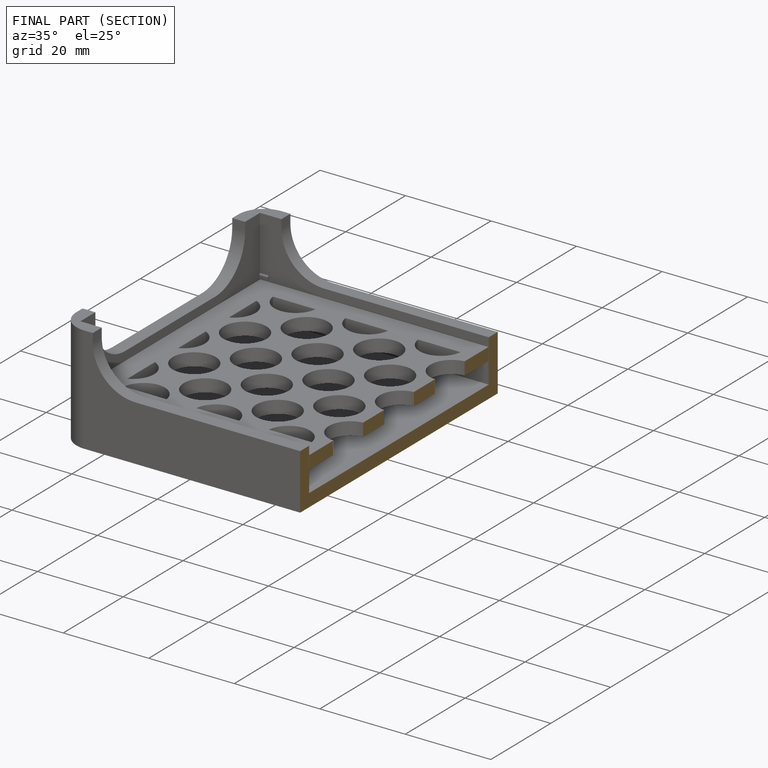
[diagram: finished part — half-section view (interior)]
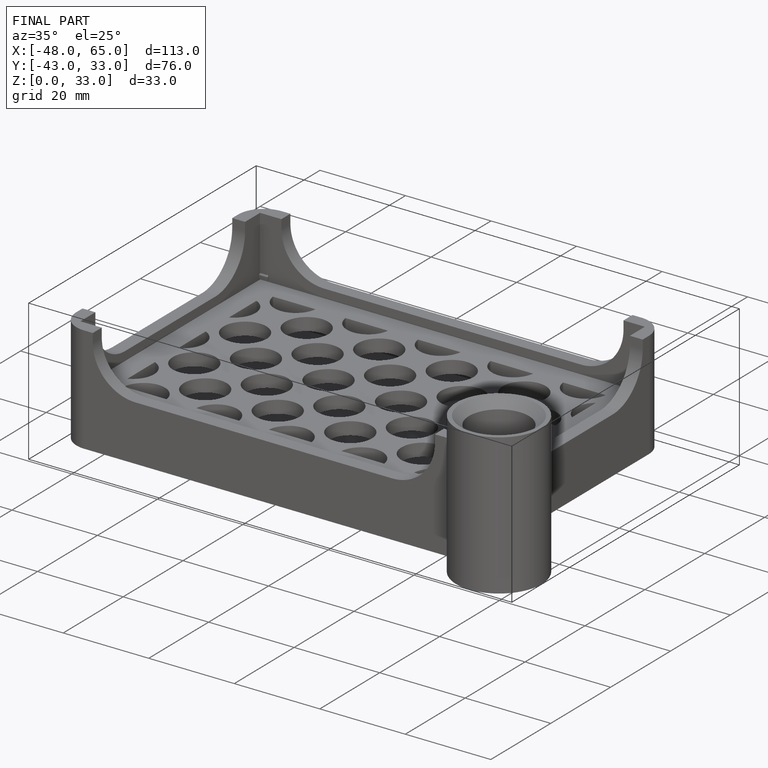
[diagram: finished part — iso view with bounding-box wireframe]
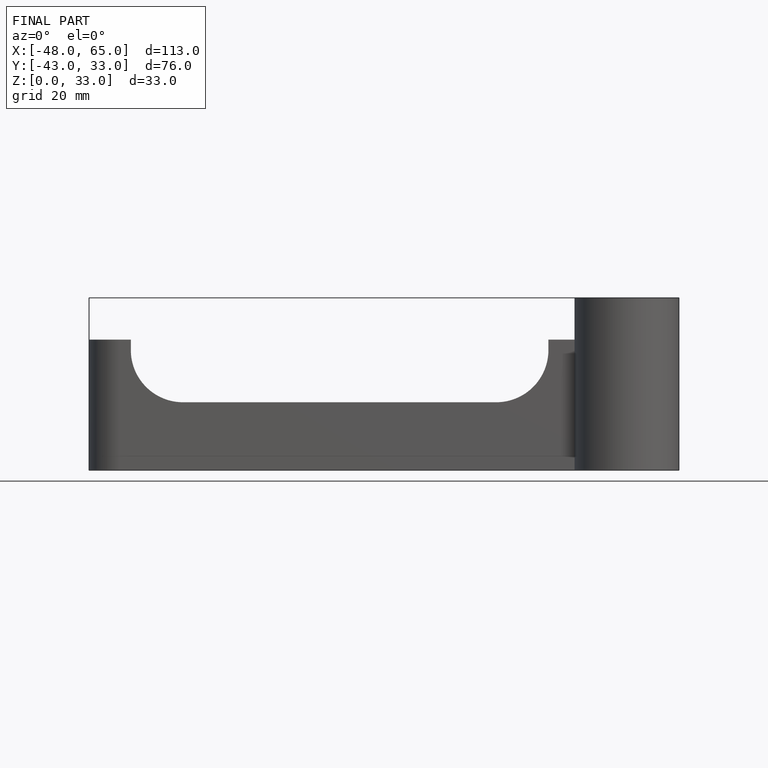
[diagram: finished part — front view with bounding-box wireframe]
